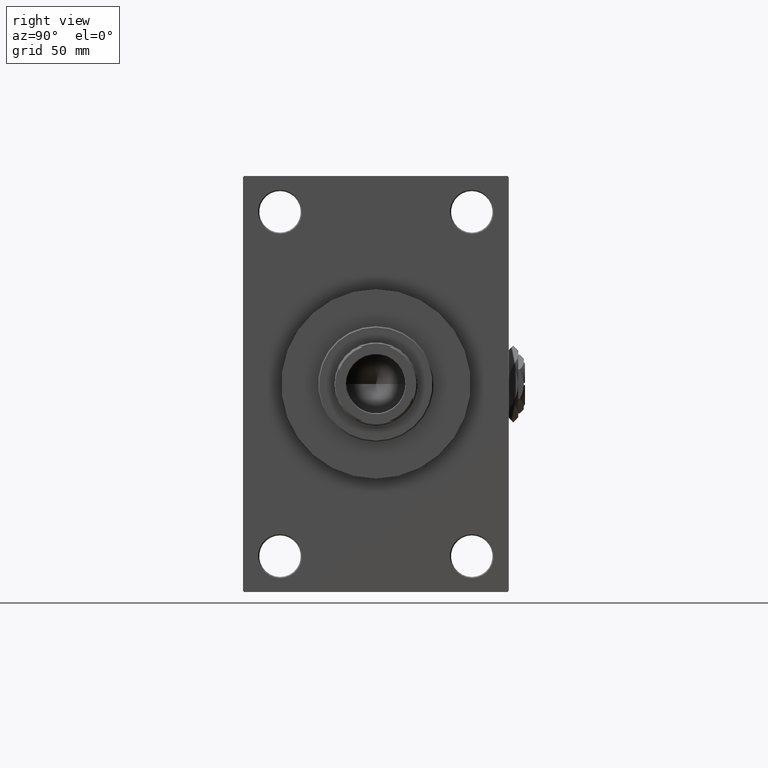
[diagram: clean part render]
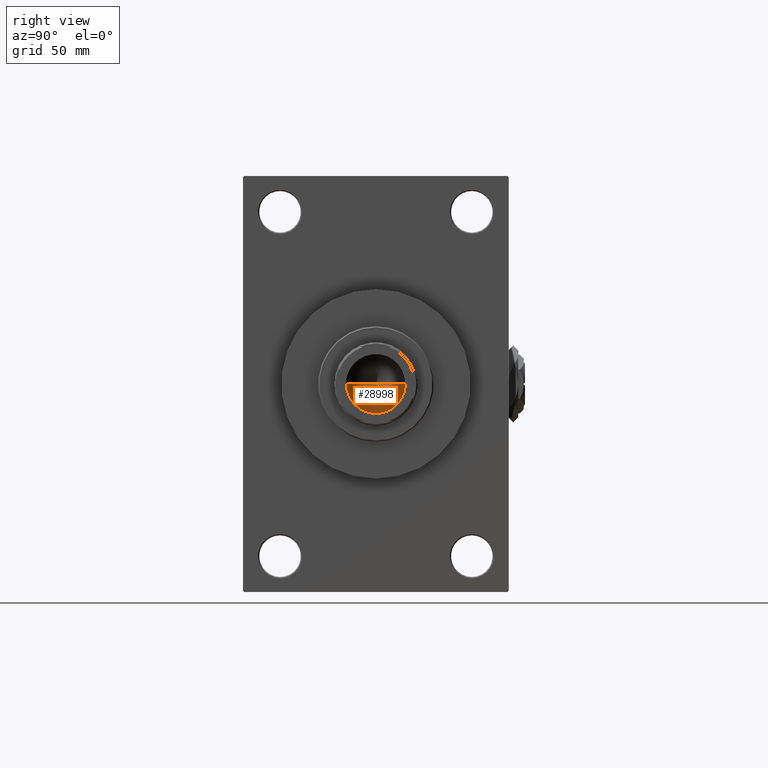
[diagram: same view with one face highlighted and labeled with its STEP entity id]
A machine part, right view. The second image highlights one B-rep face of the part: STEP entity #28998.
In plain terms, the highlighted conical surface has half-angle 59 deg.
Its self-contained STEP definition (entity closure, byte-faithful):
#997 = CONICAL_SURFACE ( 'NONE', #36686, 12.74999999999998934, 1.029744258676653423 ) ;
#1510 = DIRECTION ( 'NONE',  ( 1.000000000000000000, 0.000000000000000000, 0.000000000000000000 ) ) ;
#2306 = DIRECTION ( 'NONE',  ( 1.000000000000000000, 0.000000000000000000, 0.000000000000000000 ) ) ;
#4804 = VECTOR ( 'NONE', #26331, 1000.000000000000000 ) ;
#4849 = EDGE_CURVE ( 'NONE', #31059, #18035, #38725, .T. ) ;
#5508 = LINE ( 'NONE', #43520, #40780 ) ;
#8346 = EDGE_CURVE ( 'NONE', #16173, #18035, #16706, .T. ) ;
#12534 = ORIENTED_EDGE ( 'NONE', *, *, #4849, .F. ) ;
#12768 = DIRECTION ( 'NONE',  ( -0.000000000000000000, -0.000000000000000000, 1.000000000000000000 ) ) ;
#13517 = AXIS2_PLACEMENT_3D ( 'NONE', #36354, #12768, #2306 ) ;
#16173 = VERTEX_POINT ( 'NONE', #45416 ) ;
#16706 = CIRCLE ( 'NONE', #13517, 12.74999999999998934 ) ;
#16963 = EDGE_CURVE ( 'NONE', #31059, #16173, #5508, .T. ) ;
#18035 = VERTEX_POINT ( 'NONE', #47733 ) ;
#19858 = CARTESIAN_POINT ( 'NONE',  ( -12.74999999999998934, 1.561424668912873928E-15, 121.0000000000000142 ) ) ;
#20408 = FACE_OUTER_BOUND ( 'NONE', #43813, .T. ) ;
#21197 = ORIENTED_EDGE ( 'NONE', *, *, #16963, .T. ) ;
#23318 = CARTESIAN_POINT ( 'NONE',  ( -1.410643066818227497E-14, 0.000000000000000000, 113.3390271073986071 ) ) ;
#23610 = ORIENTED_EDGE ( 'NONE', *, *, #8346, .T. ) ;
#26331 = DIRECTION ( 'NONE',  ( -0.8571673007021117785, 1.049727191138617956E-16, 0.5150380749100550437 ) ) ;
#28998 = ADVANCED_FACE ( 'NONE', ( #20408 ), #997, .F. ) ;
#30859 = DIRECTION ( 'NONE',  ( -0.000000000000000000, -0.000000000000000000, 1.000000000000000000 ) ) ;
#31059 = VERTEX_POINT ( 'NONE', #23318 ) ;
#36354 = CARTESIAN_POINT ( 'NONE',  ( 0.000000000000000000, 0.000000000000000000, 121.0000000000000142 ) ) ;
#36686 = AXIS2_PLACEMENT_3D ( 'NONE', #46738, #30859, #1510 ) ;
#38725 = LINE ( 'NONE', #19858, #4804 ) ;
#40780 = VECTOR ( 'NONE', #47728, 1000.000000000000000 ) ;
#43520 = CARTESIAN_POINT ( 'NONE',  ( 12.74999999999998934, 0.000000000000000000, 121.0000000000000142 ) ) ;
#43813 = EDGE_LOOP ( 'NONE', ( #12534, #21197, #23610 ) ) ;
#45416 = CARTESIAN_POINT ( 'NONE',  ( 12.74999999999998934, 0.000000000000000000, 121.0000000000000142 ) ) ;
#46738 = CARTESIAN_POINT ( 'NONE',  ( 0.000000000000000000, 0.000000000000000000, 121.0000000000000142 ) ) ;
#47728 = DIRECTION ( 'NONE',  ( 0.8571673007021117785, 0.000000000000000000, 0.5150380749100550437 ) ) ;
#47733 = CARTESIAN_POINT ( 'NONE',  ( -12.74999999999998934, 1.561424668912873928E-15, 121.0000000000000142 ) ) ;